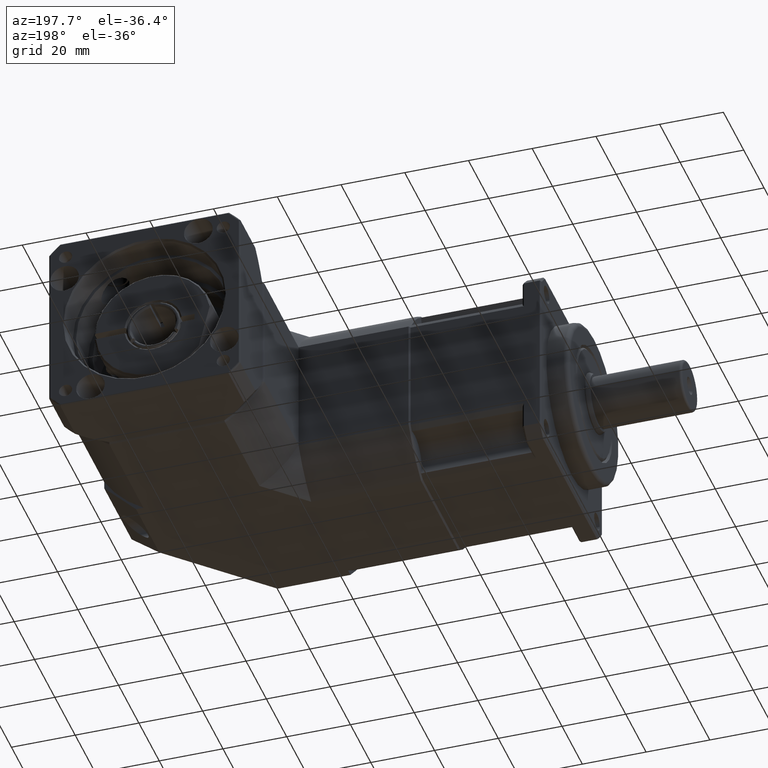
[diagram: clean part render]
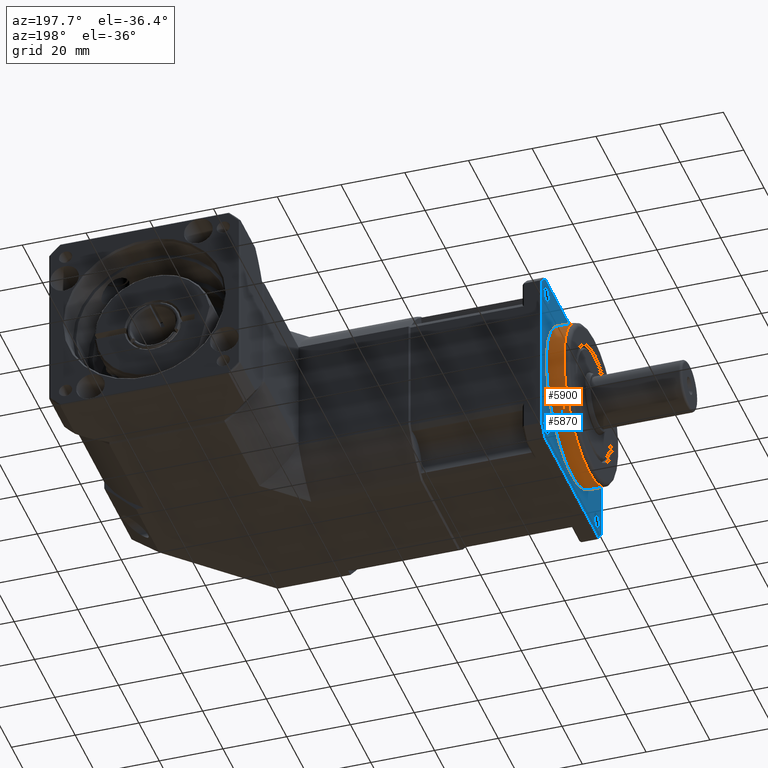
[diagram: same view with the hole feature highlighted: cylindrical wall and planar end face, labeled with their STEP entity ids]
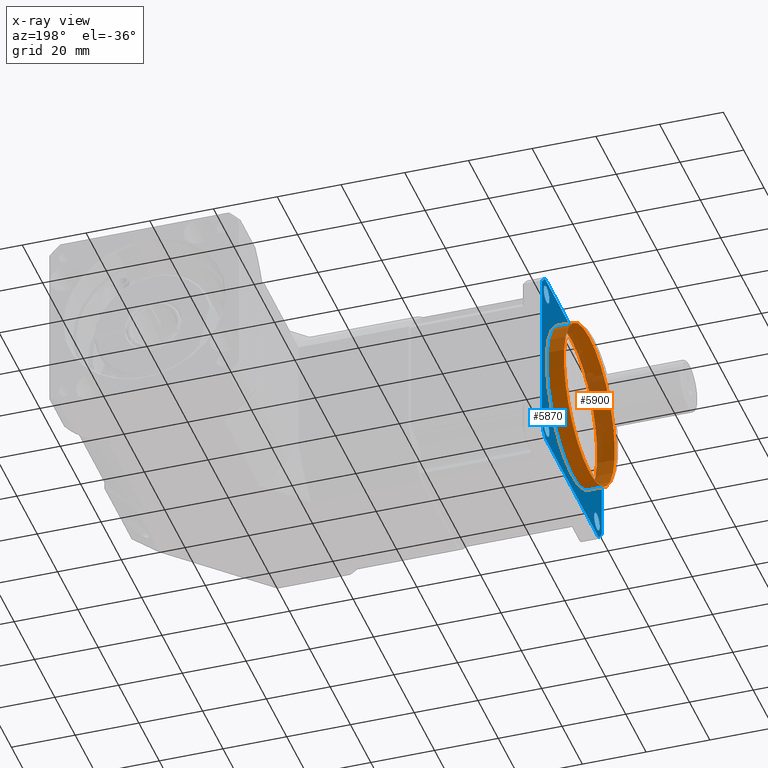
[diagram: x-ray of the same camera — body ghosted, the hole faces saturated]
A machine part, auxiliary view. The highlighted faces form one hole feature of diameter 50 mm: the cylindrical wall (entity #5900, orange) and its adjacent planar end face (entity #5870, blue) — they share a circular edge in the B-rep.
The next image is the same camera in x-ray (body ghosted, the hole faces saturated) — the bore reads through the body.
Wall:
#1169=FACE_BOUND('',#1918,.T.);
#1432=FACE_OUTER_BOUND('',#1917,.T.);
#1917=EDGE_LOOP('',(#4471));
#1918=EDGE_LOOP('',(#4472));
#2369=CIRCLE('',#6443,25.);
#2379=CIRCLE('',#6483,25.);
#2761=VERTEX_POINT('',#9483);
#2778=VERTEX_POINT('',#9626);
#3354=EDGE_CURVE('',#2761,#2761,#2369,.T.);
#3402=EDGE_CURVE('',#2778,#2778,#2379,.T.);
#4471=ORIENTED_EDGE('',*,*,#3354,.F.);
#4472=ORIENTED_EDGE('',*,*,#3402,.F.);
#5379=CYLINDRICAL_SURFACE('',#6482,25.);
#5900=ADVANCED_FACE('',(#1432,#1169),#5379,.T.);
#6443=AXIS2_PLACEMENT_3D('',#9484,#7566,#7567);
#6482=AXIS2_PLACEMENT_3D('',#9625,#7666,#7667);
#6483=AXIS2_PLACEMENT_3D('',#9627,#7668,#7669);
#7566=DIRECTION('center_axis',(1.,1.62717062046624E-15,3.12419122741346E-15));
#7567=DIRECTION('ref_axis',(3.12419122741346E-15,-5.86770215749549E-16,
-1.));
#7666=DIRECTION('center_axis',(-1.,-1.62717062046624E-15,-3.12419122741346E-15));
#7667=DIRECTION('ref_axis',(3.12419122741346E-15,-5.86770215749549E-16,
-1.));
#7668=DIRECTION('center_axis',(-1.,-1.62717062046624E-15,-3.12419122741346E-15));
#7669=DIRECTION('ref_axis',(3.12419122741346E-15,-5.86770215749549E-16,
-1.));
#9483=CARTESIAN_POINT('',(-37.5920804213371,48.1548138820486,27.3836505674064));
#9484=CARTESIAN_POINT('Origin',(-37.592080421337,48.1548138820486,2.38365056740645));
#9625=CARTESIAN_POINT('Origin',(-37.592080421337,48.1548138820486,2.38365056740645));
#9626=CARTESIAN_POINT('',(-43.0920804213371,48.1548138820486,27.3836505674064));
#9627=CARTESIAN_POINT('Origin',(-43.092080421337,48.1548138820485,2.38365056740644));
End face:
#271=LINE('',#9469,#579);
#272=LINE('',#9473,#580);
#273=LINE('',#9477,#581);
#274=LINE('',#9481,#582);
#579=VECTOR('',#7554,52.5357021462548);
#580=VECTOR('',#7557,52.5357021462548);
#581=VECTOR('',#7560,52.5357021462548);
#582=VECTOR('',#7563,52.5357021462548);
#948=PLANE('',#6438);
#1160=FACE_BOUND('',#1879,.T.);
#1161=FACE_BOUND('',#1880,.T.);
#1162=FACE_BOUND('',#1881,.T.);
#1163=FACE_BOUND('',#1882,.T.);
#1164=FACE_BOUND('',#1883,.T.);
#1402=FACE_OUTER_BOUND('',#1878,.T.);
#1878=EDGE_LOOP('',(#4323,#4324,#4325,#4326,#4327,#4328,#4329,#4330));
#1879=EDGE_LOOP('',(#4331));
#1880=EDGE_LOOP('',(#4332));
#1881=EDGE_LOOP('',(#4333));
#1882=EDGE_LOOP('',(#4334));
#1883=EDGE_LOOP('',(#4335));
#2358=CIRCLE('',#6428,2.75);
#2360=CIRCLE('',#6431,2.75);
#2362=CIRCLE('',#6434,2.75);
#2364=CIRCLE('',#6437,2.75);
#2365=CIRCLE('',#6439,39.5);
#2366=CIRCLE('',#6440,39.5);
#2367=CIRCLE('',#6441,39.5);
#2368=CIRCLE('',#6442,39.5);
#2369=CIRCLE('',#6443,25.);
#2746=VERTEX_POINT('',#9449);
#2748=VERTEX_POINT('',#9454);
#2750=VERTEX_POINT('',#9459);
#2752=VERTEX_POINT('',#9464);
#2753=VERTEX_POINT('',#9467);
#2754=VERTEX_POINT('',#9468);
#2755=VERTEX_POINT('',#9470);
#2756=VERTEX_POINT('',#9472);
#2757=VERTEX_POINT('',#9474);
#2758=VERTEX_POINT('',#9476);
#2759=VERTEX_POINT('',#9478);
#2760=VERTEX_POINT('',#9480);
#2761=VERTEX_POINT('',#9483);
#3339=EDGE_CURVE('',#2746,#2746,#2358,.T.);
#3341=EDGE_CURVE('',#2748,#2748,#2360,.T.);
#3343=EDGE_CURVE('',#2750,#2750,#2362,.T.);
#3345=EDGE_CURVE('',#2752,#2752,#2364,.T.);
#3346=EDGE_CURVE('',#2753,#2754,#271,.T.);
#3347=EDGE_CURVE('',#2755,#2753,#2365,.T.);
#3348=EDGE_CURVE('',#2756,#2755,#272,.T.);
#3349=EDGE_CURVE('',#2757,#2756,#2366,.T.);
#3350=EDGE_CURVE('',#2758,#2757,#273,.T.);
#3351=EDGE_CURVE('',#2759,#2758,#2367,.T.);
#3352=EDGE_CURVE('',#2760,#2759,#274,.T.);
#3353=EDGE_CURVE('',#2754,#2760,#2368,.T.);
#3354=EDGE_CURVE('',#2761,#2761,#2369,.T.);
#4323=ORIENTED_EDGE('',*,*,#3346,.F.);
#4324=ORIENTED_EDGE('',*,*,#3347,.F.);
#4325=ORIENTED_EDGE('',*,*,#3348,.F.);
#4326=ORIENTED_EDGE('',*,*,#3349,.F.);
#4327=ORIENTED_EDGE('',*,*,#3350,.F.);
#4328=ORIENTED_EDGE('',*,*,#3351,.F.);
#4329=ORIENTED_EDGE('',*,*,#3352,.F.);
#4330=ORIENTED_EDGE('',*,*,#3353,.F.);
#4331=ORIENTED_EDGE('',*,*,#3354,.T.);
#4332=ORIENTED_EDGE('',*,*,#3339,.T.);
#4333=ORIENTED_EDGE('',*,*,#3341,.T.);
#4334=ORIENTED_EDGE('',*,*,#3343,.T.);
#4335=ORIENTED_EDGE('',*,*,#3345,.T.);
#5870=ADVANCED_FACE('',(#1402,#1160,#1161,#1162,#1163,#1164),#948,.T.);
#6428=AXIS2_PLACEMENT_3D('',#9450,#7532,#7533);
#6431=AXIS2_PLACEMENT_3D('',#9455,#7538,#7539);
#6434=AXIS2_PLACEMENT_3D('',#9460,#7544,#7545);
#6437=AXIS2_PLACEMENT_3D('',#9465,#7550,#7551);
#6438=AXIS2_PLACEMENT_3D('',#9466,#7552,#7553);
#6439=AXIS2_PLACEMENT_3D('',#9471,#7555,#7556);
#6440=AXIS2_PLACEMENT_3D('',#9475,#7558,#7559);
#6441=AXIS2_PLACEMENT_3D('',#9479,#7561,#7562);
#6442=AXIS2_PLACEMENT_3D('',#9482,#7564,#7565);
#6443=AXIS2_PLACEMENT_3D('',#9484,#7566,#7567);
#7532=DIRECTION('center_axis',(1.,1.62717062046624E-15,3.12419122741346E-15));
#7533=DIRECTION('ref_axis',(3.12419122741346E-15,-5.8677021574955E-16,-1.));
#7538=DIRECTION('center_axis',(1.,1.62717062046624E-15,3.12419122741346E-15));
#7539=DIRECTION('ref_axis',(-1.62717062046623E-15,1.,-6.48002555706922E-16));
#7544=DIRECTION('center_axis',(1.,1.62717062046624E-15,3.12419122741346E-15));
#7545=DIRECTION('ref_axis',(-3.12419122741346E-15,7.09234895664285E-16,
1.));
#7550=DIRECTION('center_axis',(1.,1.62717062046624E-15,3.12419122741346E-15));
#7551=DIRECTION('ref_axis',(1.62717062046623E-15,-1.,7.70467235621658E-16));
#7552=DIRECTION('center_axis',(-1.,-1.62717062046624E-15,-3.12419122741346E-15));
#7553=DIRECTION('ref_axis',(-2.8421709430404E-15,7.105427357601E-16,1.));
#7554=DIRECTION('',(-1.62717062046624E-15,1.,-3.64725610824523E-16));
#7555=DIRECTION('center_axis',(1.,1.62717062046624E-15,3.12419122741346E-15));
#7556=DIRECTION('ref_axis',(3.12419122741346E-15,-5.86770215749549E-16,
-1.));
#7557=DIRECTION('',(3.12419122741346E-15,-5.86770215749549E-16,-1.));
#7558=DIRECTION('center_axis',(1.,1.62717062046624E-15,3.12419122741346E-15));
#7559=DIRECTION('ref_axis',(-3.12419122741346E-15,5.86770215749549E-16,
1.));
#7560=DIRECTION('',(1.62717062046623E-15,-1.,5.12755347441211E-16));
#7561=DIRECTION('center_axis',(1.,1.62717062046624E-15,3.12419122741346E-15));
#7562=DIRECTION('ref_axis',(-3.12419122741346E-15,5.86770215749549E-16,
1.));
#7563=DIRECTION('',(-3.12419122741346E-15,4.38740479132862E-16,1.));
#7564=DIRECTION('center_axis',(1.,1.62717062046624E-15,3.12419122741346E-15));
#7565=DIRECTION('ref_axis',(3.12419122741346E-15,-5.86770215749549E-16,
-1.));
#7566=DIRECTION('center_axis',(1.,1.62717062046624E-15,3.12419122741346E-15));
#7567=DIRECTION('ref_axis',(3.12419122741346E-15,-5.86770215749549E-16,
-1.));
#9449=CARTESIAN_POINT('',(-37.592080421337,23.4060765405194,29.8823879089356));
#9450=CARTESIAN_POINT('Origin',(-37.592080421337,23.4060765405194,27.1323879089356));
#9454=CARTESIAN_POINT('',(-37.5920804213369,20.6560765405194,-22.3650867741227));
#9455=CARTESIAN_POINT('Origin',(-37.5920804213369,23.4060765405194,-22.3650867741227));
#9459=CARTESIAN_POINT('',(-37.5920804213369,72.9035512235777,-25.1150867741227));
#9460=CARTESIAN_POINT('Origin',(-37.5920804213369,72.9035512235777,-22.3650867741227));
#9464=CARTESIAN_POINT('',(-37.5920804213371,75.6535512235777,27.1323879089356));
#9465=CARTESIAN_POINT('Origin',(-37.5920804213371,72.9035512235777,27.1323879089356));
#9466=CARTESIAN_POINT('Origin',(-37.592080421337,48.1548138820486,2.38365056740646));
#9467=CARTESIAN_POINT('',(-37.5920804213369,21.8869628089211,-27.1163494325935));
#9468=CARTESIAN_POINT('',(-37.5920804213369,74.4226649551759,-27.1163494325936));
#9469=CARTESIAN_POINT('',(-37.5920804213369,63.1548138820485,-27.1163494325936));
#9470=CARTESIAN_POINT('',(-37.5920804213369,18.6548138820485,-23.8842005057209));
#9471=CARTESIAN_POINT('Origin',(-37.592080421337,48.1548138820486,2.38365056740645));
#9472=CARTESIAN_POINT('',(-37.592080421337,18.6548138820486,28.6515016405339));
#9473=CARTESIAN_POINT('',(-37.5920804213369,18.6548138820485,-12.6163494325935));
#9474=CARTESIAN_POINT('',(-37.592080421337,21.8869628089212,31.8836505674065));
#9475=CARTESIAN_POINT('Origin',(-37.592080421337,48.1548138820486,2.38365056740645));
#9476=CARTESIAN_POINT('',(-37.5920804213371,74.4226649551759,31.8836505674065));
#9477=CARTESIAN_POINT('',(-37.592080421337,33.1548138820486,31.8836505674065));
#9478=CARTESIAN_POINT('',(-37.5920804213371,77.6548138820486,28.6515016405338));
#9479=CARTESIAN_POINT('Origin',(-37.592080421337,48.1548138820486,2.38365056740645));
#9480=CARTESIAN_POINT('',(-37.5920804213369,77.6548138820485,-23.884200505721));
#9481=CARTESIAN_POINT('',(-37.5920804213371,77.6548138820486,17.3836505674064));
#9482=CARTESIAN_POINT('Origin',(-37.592080421337,48.1548138820486,2.38365056740645));
#9483=CARTESIAN_POINT('',(-37.5920804213371,48.1548138820486,27.3836505674064));
#9484=CARTESIAN_POINT('Origin',(-37.592080421337,48.1548138820486,2.38365056740645));